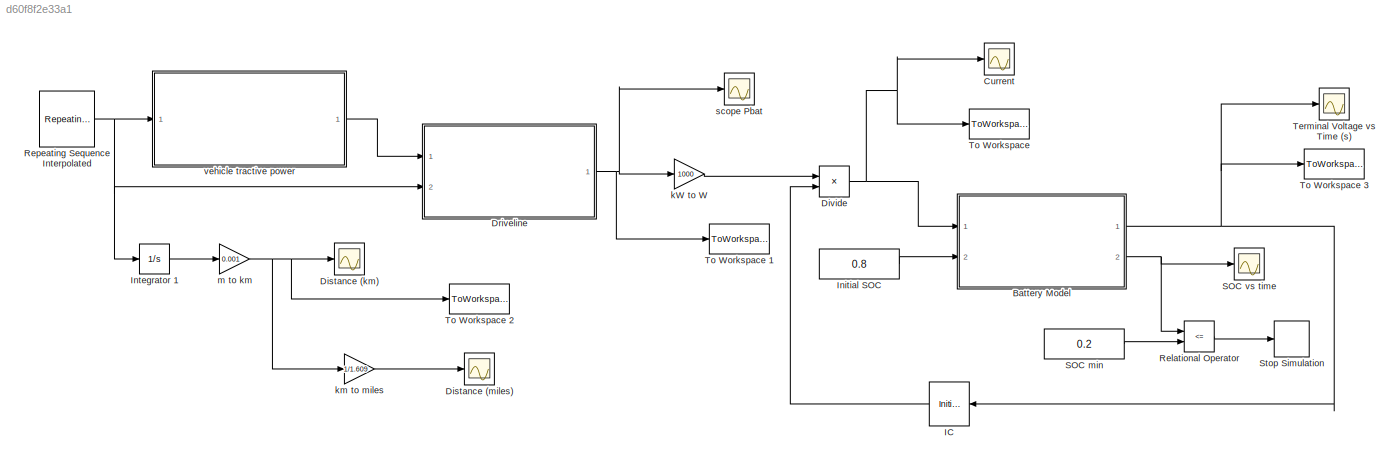
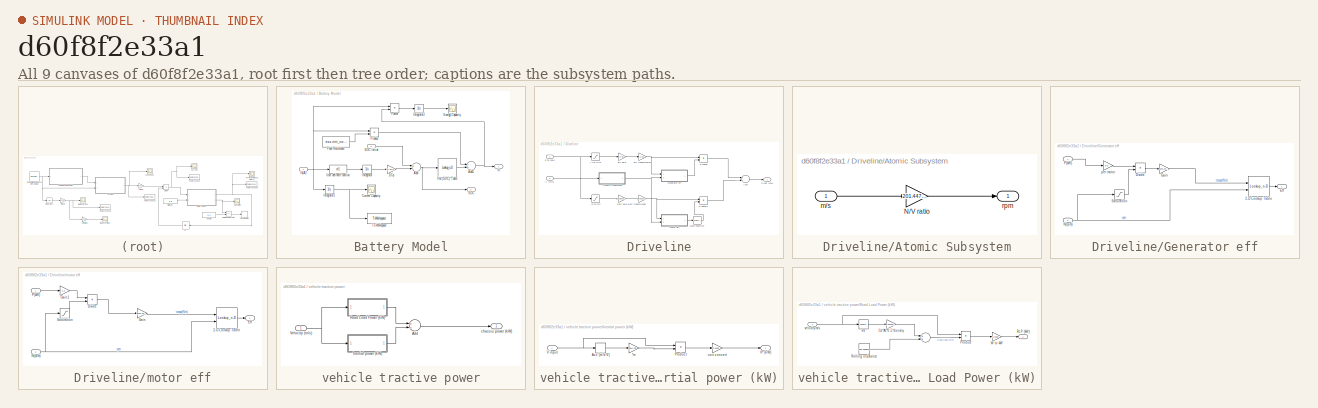
[diagram: thumbnail index - all 9 canvases of the model, root first then tree order]
MODEL slx_d60f8f2e33a1
KIND model
CONFIG AbsTol = auto
CONFIG EnableMultiTasking = on
CONFIG FixedStep = 1
CONFIG MaxStep = auto
CONFIG MinStep = auto
CONFIG RelTol = 1e-3
CONFIG SampleTimeConstraint = Unconstrained
CONFIG Solver = ode4
CONFIG SolverName = ode4
CONFIG StartTime = 0.0
CONFIG StopTime = 1000
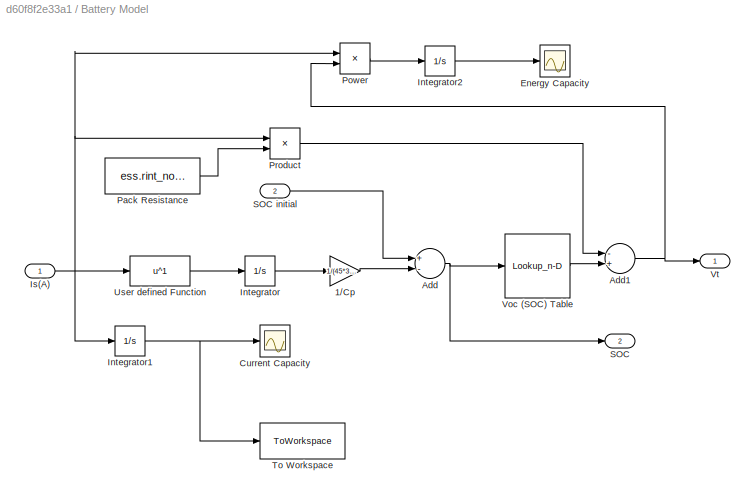
BLOCK [SubSystem] Battery Model
  Ports = [2, 2]
  RequestExecContextInheritance = off
  Variant = off
BLOCK [Gain] Battery Model/1//Cp
  Gain = 1/(45*3600)
  OutDataTypeStr = Inherit: Inherit via internal rule
  ParamDataTypeStr = Inherit: Inherit via internal rule
  SaturateOnIntegerOverflow = off
BLOCK [Sum] Battery Model/Add
  InputSameDT = off
  Inputs = +-
  OutDataTypeStr = Inherit: Inherit via internal rule
  Ports = [2, 1]
  SaturateOnIntegerOverflow = off
BLOCK [Sum] Battery Model/Add1
  InputSameDT = off
  Inputs = -+
  OutDataTypeStr = Inherit: Inherit via internal rule
  Ports = [2, 1]
  SaturateOnIntegerOverflow = off
BLOCK [Scope] Battery Model/Current Capacity
  NumInputPorts = 1
  Ports = [1]
  ScopeSpecificationString = Simulink.scopes.TimeScopeBlockCfg('CurrentConfiguration', extmgr.ConfigurationSet(extmgr.Configuration('Core','General UI',true),extmgr.Configuration('Core','Source UI',true),extmgr.Configuration('Sources','WiredSimulink',true,'DataLoggingVariableName','ScopeData2'),extmgr.Configuration('Visuals','Time Domain',true,'SerializedDisplays',{struct('MinYLimReal','-5.2425','MaxYLimReal','47.1825','YLabe...<+1368ch>
BLOCK [Scope] Battery Model/Energy Capacity
  NumInputPorts = 1
  Ports = [1]
  ScopeSpecificationString = Simulink.scopes.TimeScopeBlockCfg('CurrentConfiguration', extmgr.ConfigurationSet(extmgr.Configuration('Core','General UI',true),extmgr.Configuration('Core','Source UI',true),extmgr.Configuration('Sources','WiredSimulink',true,'DataLoggingVariableName','ScopeData3'),extmgr.Configuration('Visuals','Time Domain',true,'SerializedDisplays',{struct('MinYLimReal','-1867.01406','MaxYLimReal','16803.12651...<+1396ch>
BLOCK [Integrator] Battery Model/Integrator
  Ports = [1, 1]
BLOCK [Integrator] Battery Model/Integrator1
  Ports = [1, 1]
BLOCK [Integrator] Battery Model/Integrator2
  Ports = [1, 1]
BLOCK [Inport] Battery Model/Is(A)
  IconDisplay = Port number
BLOCK [Constant] Battery Model/Pack Resistance
  Value = ess.rint_nom_pack
BLOCK [Product] Battery Model/Power
  InputSameDT = off
  OutDataTypeStr = Inherit: Inherit via internal rule
  Ports = [2, 1]
  RndMeth = Floor
  SaturateOnIntegerOverflow = off
BLOCK [Product] Battery Model/Product
  InputSameDT = off
  OutDataTypeStr = Inherit: Inherit via internal rule
  Ports = [2, 1]
  RndMeth = Floor
  SaturateOnIntegerOverflow = off
BLOCK [Outport] Battery Model/SOC
  IconDisplay = Port number
  Port = 2
BLOCK [Inport] Battery Model/SOC initial
  IconDisplay = Port number
  Port = 2
BLOCK [ToWorkspace] Battery Model/To Workspace
  FixptAsFi = on
  MaxDataPoints = inf
  Ports = [1]
  SampleTime = -1
  Save2DSignal = 3-D array (concatenate along third dimension)
  SaveFormat = Timeseries
  VariableName = Charge_Capacity
BLOCK [Fcn] Battery Model/User defined Function
  Expr = u^1
BLOCK [Lookup_n-D] Battery Model/Voc (SOC) Table
  BreakpointsForDimension1 = ess.soc_index
  InternalRulePriority = Speed
  NumberOfTableDimensions = 1
  Ports = [1, 1]
  RndMeth = Simplest
  Table = ess.voc_map_pack
BLOCK [Outport] Battery Model/Vt
  IconDisplay = Port number
BLOCK [Scope] Current
  NumInputPorts = 1
  Ports = [1]
  ScopeSpecificationString = Simulink.scopes.TimeScopeBlockCfg('CurrentConfiguration', extmgr.ConfigurationSet(extmgr.Configuration('Core','General UI',true),extmgr.Configuration('Core','Source UI',true),extmgr.Configuration('Sources','WiredSimulink',true,'DataLoggingVariableName','ScopeData1'),extmgr.Configuration('Visuals','Time Domain',true,'SerializedDisplays',{struct('MinYLimReal','-337.6155','MaxYLimReal','856.55218','Y...<+1404ch>
BLOCK [Scope] Distance (km)
  NumInputPorts = 1
  Ports = [1]
  ScopeSpecificationString = Simulink.scopes.TimeScopeBlockCfg('CurrentConfiguration', extmgr.ConfigurationSet(extmgr.Configuration('Core','General UI',true),extmgr.Configuration('Core','Source UI',true),extmgr.Configuration('Sources','WiredSimulink',true,'DataLoggingVariableName','ScopeData2'),extmgr.Configuration('Visuals','Time Domain',true,'SerializedDisplays',{struct('MinYLimReal','-2.78105','MaxYLimReal','25.02945','YLa...<+1666ch>
BLOCK [Scope] Distance (miles)
  NumInputPorts = 1
  Ports = [1]
  ScopeSpecificationString = Simulink.scopes.TimeScopeBlockCfg('CurrentConfiguration', extmgr.ConfigurationSet(extmgr.Configuration('Core','General UI',true),extmgr.Configuration('Core','Source UI',true),extmgr.Configuration('Sources','WiredSimulink',true,'DataLoggingVariableName','ScopeData3'),extmgr.Configuration('Visuals','Time Domain',true,'SerializedDisplays',{struct('MinYLimReal','-1.72843','MaxYLimReal','15.5559','YLab...<+1370ch>
BLOCK [Product] Divide
  InputSameDT = off
  Inputs = */
  OutDataTypeStr = Inherit: Inherit via internal rule
  Ports = [2, 1]
  RndMeth = Floor
  SaturateOnIntegerOverflow = off
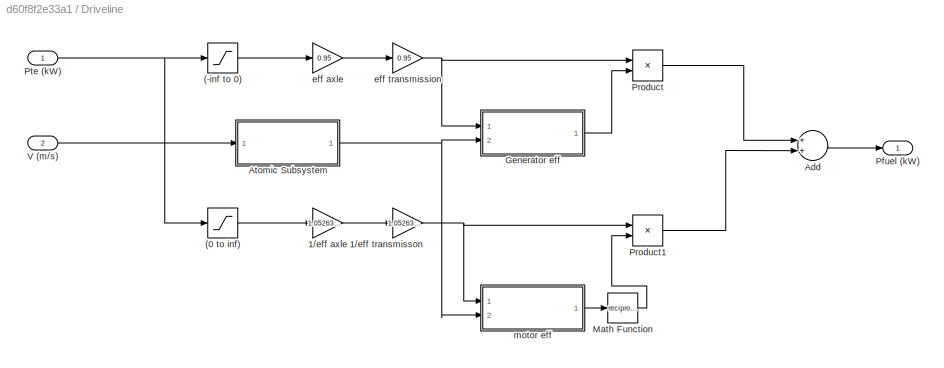
BLOCK [SubSystem] Driveline
  Ports = [2, 1]
  RequestExecContextInheritance = off
  Variant = off
BLOCK [Saturate] Driveline/(-inf to 0)
  InputPortMap = u0
  LowerLimit = -inf
  Ports = [1, 1]
  UpperLimit = 0
BLOCK [Saturate] Driveline/(0 to inf)
  InputPortMap = u0
  LowerLimit = 0
  Ports = [1, 1]
  UpperLimit = inf
BLOCK [Gain] Driveline/1//eff axle 
  Gain = 1.052631579
  OutDataTypeStr = Inherit: Inherit via internal rule
  ParamDataTypeStr = Inherit: Inherit via internal rule
  SaturateOnIntegerOverflow = off
BLOCK [Gain] Driveline/1//eff transmisson
  Gain = 1.052631579
  OutDataTypeStr = Inherit: Inherit via internal rule
  ParamDataTypeStr = Inherit: Inherit via internal rule
  SaturateOnIntegerOverflow = off
BLOCK [Sum] Driveline/Add
  InputSameDT = off
  OutDataTypeStr = Inherit: Inherit via internal rule
  Ports = [2, 1]
  SaturateOnIntegerOverflow = off
BLOCK [SubSystem] Driveline/Atomic Subsystem
  Ports = [1, 1]
  RequestExecContextInheritance = off
  TreatAsAtomicUnit = on
  Variant = off
BLOCK [Gain] Driveline/Atomic Subsystem/N//V ratio
  Gain = 201.447874
  OutDataTypeStr = Inherit: Inherit via internal rule
  ParamDataTypeStr = Inherit: Inherit via internal rule
  SaturateOnIntegerOverflow = off
BLOCK [Inport] Driveline/Atomic Subsystem/m//s
  IconDisplay = Port number
BLOCK [Outport] Driveline/Atomic Subsystem/rpm
  IconDisplay = Port number
BLOCK [SubSystem] Driveline/Generator eff
  Ports = [2, 1]
  RequestExecContextInheritance = off
  TreatAsAtomicUnit = on
  Variant = off
BLOCK [Lookup_n-D] Driveline/Generator eff/2-D Lookup Table
  BreakpointsForDimension1 = mc.trq_eff_index_gen
  BreakpointsForDimension2 = mc.rpm_eff_index_gen
  InternalRulePriority = Speed
  Ports = [2, 1]
  RndMeth = Simplest
  Table = mc.eff_trq_map_gen'
BLOCK [Product] Driveline/Generator eff/Divide
  InputSameDT = off
  Inputs = */
  OutDataTypeStr = Inherit: Inherit via internal rule
  Ports = [2, 1]
  RndMeth = Floor
  SaturateOnIntegerOverflow = off
BLOCK [Outport] Driveline/Generator eff/Eff 
  IconDisplay = Port number
BLOCK [Gain] Driveline/Generator eff/Gain
  Gain = 9549.29658551372
  OutDataTypeStr = Inherit: Inherit via internal rule
  ParamDataTypeStr = Inherit: Inherit via internal rule
  SaturateOnIntegerOverflow = off
BLOCK [Inport] Driveline/Generator eff/N(rpm)
  IconDisplay = Port number
  Port = 2
BLOCK [Inport] Driveline/Generator eff/P(kW)
  IconDisplay = Port number
BLOCK [Saturate] Driveline/Generator eff/Saturation
  InputPortMap = u0
  LowerLimit = 0.1
  Ports = [1, 1]
  UpperLimit = 8000
BLOCK [Gain] Driveline/Generator eff/per  motor
  Gain = 0.5
  OutDataTypeStr = Inherit: Inherit via internal rule
  ParamDataTypeStr = Inherit: Inherit via internal rule
  SaturateOnIntegerOverflow = off
BLOCK [Math] Driveline/Math Function
  Operator = reciprocal
  Ports = [1, 1]
BLOCK [Outport] Driveline/Pfuel (kW)
  IconDisplay = Port number
BLOCK [Product] Driveline/Product
  InputSameDT = off
  OutDataTypeStr = Inherit: Inherit via internal rule
  Ports = [2, 1]
  RndMeth = Floor
  SaturateOnIntegerOverflow = off
BLOCK [Product] Driveline/Product1
  InputSameDT = off
  OutDataTypeStr = Inherit: Inherit via internal rule
  Ports = [2, 1]
  RndMeth = Floor
  SaturateOnIntegerOverflow = off
BLOCK [Inport] Driveline/Pte (kW)
  IconDisplay = Port number
BLOCK [Inport] Driveline/V (m//s)
  IconDisplay = Port number
  Port = 2
BLOCK [Gain] Driveline/eff axle
  Gain = 0.95
  OutDataTypeStr = Inherit: Inherit via internal rule
  ParamDataTypeStr = Inherit: Inherit via internal rule
  SaturateOnIntegerOverflow = off
BLOCK [Gain] Driveline/eff transmission
  Gain = 0.95
  OutDataTypeStr = Inherit: Inherit via internal rule
  ParamDataTypeStr = Inherit: Inherit via internal rule
  SaturateOnIntegerOverflow = off
BLOCK [SubSystem] Driveline/motor eff
  Ports = [2, 1]
  RequestExecContextInheritance = off
  TreatAsAtomicUnit = on
  Variant = off
BLOCK [Lookup_n-D] Driveline/motor eff/2-D Lookup Table
  BreakpointsForDimension1 = mc.trq_eff_index
  BreakpointsForDimension2 = mc.rpm_eff_index
  InternalRulePriority = Speed
  Ports = [2, 1]
  RndMeth = Simplest
  Table = mc.eff_trq_map'
BLOCK [Product] Driveline/motor eff/Divide
  InputSameDT = off
  Inputs = */
  OutDataTypeStr = Inherit: Inherit via internal rule
  Ports = [2, 1]
  RndMeth = Floor
  SaturateOnIntegerOverflow = off
BLOCK [Outport] Driveline/motor eff/Eff 
  IconDisplay = Port number
BLOCK [Gain] Driveline/motor eff/Gain
  Gain = 9549.29658551372
  OutDataTypeStr = Inherit: Inherit via internal rule
  ParamDataTypeStr = Inherit: Inherit via internal rule
  SaturateOnIntegerOverflow = off
BLOCK [Gain] Driveline/motor eff/Gain1
  Gain = 0.5
  OutDataTypeStr = Inherit: Inherit via internal rule
  ParamDataTypeStr = Inherit: Inherit via internal rule
  SaturateOnIntegerOverflow = off
BLOCK [Inport] Driveline/motor eff/N(rpm)
  IconDisplay = Port number
  Port = 2
BLOCK [Inport] Driveline/motor eff/P(kW)
  IconDisplay = Port number
BLOCK [Saturate] Driveline/motor eff/Saturation
  InputPortMap = u0
  LowerLimit = 0.1
  Ports = [1, 1]
  UpperLimit = 8000
BLOCK [InitialCondition] IC
  Value = 345
BLOCK [Constant] Initial SOC
  Value = 0.8
BLOCK [Integrator] Integrator 1
  Ports = [1, 1]
BLOCK [RelationalOperator] Relational Operator
  InputSameDT = off
  Operator = <=
  OutDataTypeStr = boolean
  Ports = [2, 1]
BLOCK [Reference] Repeating Sequence Interpolated  REF=simulink/Sources/Repeating
Sequence
Interpolated
  Ports = [0, 1]
  SourceBlock = simulink/Sources/Repeating\nSequence\nInterpolated
  SourceProductBaseCode = SL
  SourceProductName = Simulink
  SourceType = Repeating Sequence Interpolated
BLOCK [Constant] SOC min
  Value = 0.2
BLOCK [Scope] SOC vs time
  NumInputPorts = 1
  Ports = [1]
  ScopeSpecificationString = Simulink.scopes.TimeScopeBlockCfg('CurrentConfiguration', extmgr.ConfigurationSet(extmgr.Configuration('Core','General UI',true),extmgr.Configuration('Core','Source UI',true),extmgr.Configuration('Sources','WiredSimulink',true,'DataLoggingVariableName','ScopeData1'),extmgr.Configuration('Visuals','Time Domain',true,'SerializedDisplays',{struct('MinYLimReal','-1.00000','MaxYLimReal','1.00000','YLab...<+1471ch>
BLOCK [Stop] Stop Simulation
BLOCK [Scope] Terminal Voltage vs Time (s)
  NumInputPorts = 1
  Ports = [1]
  ScopeSpecificationString = Simulink.scopes.TimeScopeBlockCfg('CurrentConfiguration', extmgr.ConfigurationSet(extmgr.Configuration('Core','General UI',true),extmgr.Configuration('Core','Source UI',true),extmgr.Configuration('Sources','WiredSimulink',true),extmgr.Configuration('Visuals','Time Domain',true,'SerializedDisplays',{struct('MinYLimReal','265.41162','MaxYLimReal','416.06891','YLabelReal','','MinYLimMag','265.41162',...<+1663ch>
BLOCK [ToWorkspace] To Workspace
  FixptAsFi = on
  MaxDataPoints = inf
  Ports = [1]
  SampleTime = -1
  Save2DSignal = 3-D array (concatenate along third dimension)
  SaveFormat = Timeseries
  VariableName = Ibat
BLOCK [ToWorkspace] To Workspace 1
  FixptAsFi = on
  MaxDataPoints = inf
  Ports = [1]
  SampleTime = -1
  Save2DSignal = 3-D array (concatenate along third dimension)
  SaveFormat = Timeseries
  VariableName = Pbat
BLOCK [ToWorkspace] To Workspace 2
  FixptAsFi = on
  MaxDataPoints = inf
  Ports = [1]
  SampleTime = -1
  Save2DSignal = 3-D array (concatenate along third dimension)
  SaveFormat = Timeseries
  VariableName = Distance
BLOCK [ToWorkspace] To Workspace 3
  FixptAsFi = on
  MaxDataPoints = inf
  Ports = [1]
  SampleTime = -1
  Save2DSignal = 3-D array (concatenate along third dimension)
  SaveFormat = Timeseries
  VariableName = Voltage
BLOCK [Gain] kW to W
  Gain = 1000
  OutDataTypeStr = Inherit: Inherit via internal rule
  ParamDataTypeStr = Inherit: Inherit via internal rule
  SaturateOnIntegerOverflow = off
BLOCK [Gain] km to miles
  Gain = 1/1.609
  OutDataTypeStr = Inherit: Inherit via internal rule
  ParamDataTypeStr = Inherit: Inherit via internal rule
  SaturateOnIntegerOverflow = off
BLOCK [Gain] m to km
  Gain = 0.001
  OutDataTypeStr = Inherit: Inherit via internal rule
  ParamDataTypeStr = Inherit: Inherit via internal rule
  SaturateOnIntegerOverflow = off
BLOCK [Scope] scope Pbat
  NumInputPorts = 1
  Ports = [1]
  ScopeSpecificationString = Simulink.scopes.TimeScopeBlockCfg('CurrentConfiguration', extmgr.ConfigurationSet(extmgr.Configuration('Core','General UI',true),extmgr.Configuration('Core','Source UI',true),extmgr.Configuration('Sources','WiredSimulink',true,'DataLoggingVariableName','ScopeData4'),extmgr.Configuration('Visuals','Time Domain',true,'SerializedDisplays',{struct('MinYLimReal','-116.32857','MaxYLimReal','242.64738','...<+1409ch>
BLOCK [SubSystem] vehicle tractive power
  Ports = [1, 1]
  RequestExecContextInheritance = off
  Variant = off
BLOCK [Sum] vehicle tractive power/Add
  InputSameDT = off
  OutDataTypeStr = Inherit: Inherit via internal rule
  Ports = [2, 1]
  SaturateOnIntegerOverflow = off
BLOCK [SubSystem] vehicle tractive power/Inertial power (kW)
  Ports = [1, 1]
  RequestExecContextInheritance = off
  TreatAsAtomicUnit = on
  Variant = off
BLOCK [Gain] vehicle tractive power/Inertial power (kW)/*m
  Gain = 3094.765
  OutDataTypeStr = Inherit: Inherit via internal rule
  ParamDataTypeStr = Inherit: Inherit via internal rule
  SaturateOnIntegerOverflow = off
BLOCK [Derivative] vehicle tractive power/Inertial power (kW)/Acc (m//s^2)
BLOCK [Outport] vehicle tractive power/Inertial power (kW)/IP (kW)
  IconDisplay = Port number
BLOCK [Product] vehicle tractive power/Inertial power (kW)/Product
  InputSameDT = off
  OutDataTypeStr = Inherit: Inherit via internal rule
  Ports = [2, 1]
  RndMeth = Floor
  SaturateOnIntegerOverflow = off
BLOCK [Inport] vehicle tractive power/Inertial power (kW)/V input
  IconDisplay = Port number
BLOCK [Gain] vehicle tractive power/Inertial power (kW)/unit convert
  Gain = 1/1000
  OutDataTypeStr = Inherit: Inherit via internal rule
  ParamDataTypeStr = Inherit: Inherit via internal rule
  SaturateOnIntegerOverflow = off
BLOCK [SubSystem] vehicle tractive power/Road Load Power (kW)
  Ports = [1, 1]
  RequestExecContextInheritance = off
  TreatAsAtomicUnit = on
  Variant = off
BLOCK [Sum] vehicle tractive power/Road Load Power (kW)/ 
  InputSameDT = off
  OutDataTypeStr = Inherit: Inherit via internal rule
  Ports = [2, 1]
  SaturateOnIntegerOverflow = off
BLOCK [Gain] vehicle tractive power/Road Load Power (kW)/Cd*Af*0.5*density 
  Gain = 0.55539046
  OutDataTypeStr = Inherit: Inherit via internal rule
  ParamDataTypeStr = Inherit: Inherit via internal rule
  SaturateOnIntegerOverflow = off
BLOCK [Product] vehicle tractive power/Road Load Power (kW)/Product
  InputSameDT = off
  OutDataTypeStr = Inherit: Inherit via internal rule
  Ports = [2, 1]
  RndMeth = Floor
  SaturateOnIntegerOverflow = off
BLOCK [Outport] vehicle tractive power/Road Load Power (kW)/RLP (kW)
  IconDisplay = Port number
BLOCK [Constant] vehicle tractive power/Road Load Power (kW)/Rolling resistance 
  Value = 290.396601
BLOCK [Gain] vehicle tractive power/Road Load Power (kW)/W to kW
  Gain = 1/1000
  OutDataTypeStr = Inherit: Inherit via internal rule
  ParamDataTypeStr = Inherit: Inherit via internal rule
  SaturateOnIntegerOverflow = off
BLOCK [Math] vehicle tractive power/Road Load Power (kW)/v^2
  Operator = square
  Ports = [1, 1]
BLOCK [Inport] vehicle tractive power/Road Load Power (kW)/velocity m//s 
  IconDisplay = Port number
BLOCK [Inport] vehicle tractive power/Velocity (m//s)
  IconDisplay = Port number
BLOCK [Outport] vehicle tractive power/chassis power (kW)
  IconDisplay = Port number
LINE Battery Model/1//Cp:1 -> Battery Model/Add:2
NET Battery Model/Add1:1 -> Battery Model/Power:2, Battery Model/Vt:1
NET Battery Model/Add:1 -> Battery Model/SOC:1, Battery Model/Voc (SOC) Table:1
NET Battery Model/Integrator1:1 -> Battery Model/Current Capacity:1, Battery Model/To Workspace:1
LINE Battery Model/Integrator2:1 -> Battery Model/Energy Capacity:1
LINE Battery Model/Integrator:1 -> Battery Model/1//Cp:1
NET Battery Model/Is(A):1 -> Battery Model/Integrator1:1, Battery Model/Power:1, Battery Model/Product:1, Battery Model/User defined Function:1
LINE Battery Model/Pack Resistance:1 -> Battery Model/Product:2
LINE Battery Model/Power:1 -> Battery Model/Integrator2:1
LINE Battery Model/Product:1 -> Battery Model/Add1:1
LINE Battery Model/SOC initial:1 -> Battery Model/Add:1
LINE Battery Model/User defined Function:1 -> Battery Model/Integrator:1
LINE Battery Model/Voc (SOC) Table:1 -> Battery Model/Add1:2
NET Battery Model:1 -> IC:1, Terminal Voltage vs Time (s):1, To Workspace 3:1
NET Battery Model:2 -> Relational Operator:1, SOC vs time:1
NET Divide:1 -> Battery Model:1, Current:1, To Workspace:1
LINE Driveline/(-inf to 0):1 -> Driveline/eff axle:1
LINE Driveline/(0 to inf):1 -> Driveline/1//eff axle :1
LINE Driveline/1//eff axle :1 -> Driveline/1//eff transmisson:1
NET Driveline/1//eff transmisson:1 -> Driveline/Product1:1, Driveline/motor eff:1
LINE Driveline/Add:1 -> Driveline/Pfuel (kW):1
LINE Driveline/Atomic Subsystem/N//V ratio:1 -> Driveline/Atomic Subsystem/rpm:1
LINE Driveline/Atomic Subsystem/m//s:1 -> Driveline/Atomic Subsystem/N//V ratio:1
NET Driveline/Atomic Subsystem:1 -> Driveline/Generator eff:2, Driveline/motor eff:2
LINE Driveline/Generator eff/2-D Lookup Table:1 -> Driveline/Generator eff/Eff :1
LINE Driveline/Generator eff/Divide:1 -> Driveline/Generator eff/Gain:1
LINE Driveline/Generator eff/Gain:1 -> Driveline/Generator eff/2-D Lookup Table:1
NET Driveline/Generator eff/N(rpm):1 -> Driveline/Generator eff/2-D Lookup Table:2, Driveline/Generator eff/Saturation:1
LINE Driveline/Generator eff/P(kW):1 -> Driveline/Generator eff/per  motor:1
LINE Driveline/Generator eff/Saturation:1 -> Driveline/Generator eff/Divide:2
LINE Driveline/Generator eff/per  motor:1 -> Driveline/Generator eff/Divide:1
LINE Driveline/Generator eff:1 -> Driveline/Product:2
LINE Driveline/Math Function:1 -> Driveline/Product1:2
LINE Driveline/Product1:1 -> Driveline/Add:2
LINE Driveline/Product:1 -> Driveline/Add:1
NET Driveline/Pte (kW):1 -> Driveline/(-inf to 0):1, Driveline/(0 to inf):1
LINE Driveline/V (m//s):1 -> Driveline/Atomic Subsystem:1
LINE Driveline/eff axle:1 -> Driveline/eff transmission:1
NET Driveline/eff transmission:1 -> Driveline/Generator eff:1, Driveline/Product:1
LINE Driveline/motor eff/2-D Lookup Table:1 -> Driveline/motor eff/Eff :1
LINE Driveline/motor eff/Divide:1 -> Driveline/motor eff/Gain:1
LINE Driveline/motor eff/Gain1:1 -> Driveline/motor eff/Divide:1
LINE Driveline/motor eff/Gain:1 -> Driveline/motor eff/2-D Lookup Table:1
NET Driveline/motor eff/N(rpm):1 -> Driveline/motor eff/2-D Lookup Table:2, Driveline/motor eff/Saturation:1
LINE Driveline/motor eff/P(kW):1 -> Driveline/motor eff/Gain1:1
LINE Driveline/motor eff/Saturation:1 -> Driveline/motor eff/Divide:2
LINE Driveline/motor eff:1 -> Driveline/Math Function:1
NET Driveline:1 -> To Workspace 1:1, kW to W:1, scope Pbat:1
LINE IC:1 -> Divide:2
LINE Initial SOC:1 -> Battery Model:2
LINE Integrator 1:1 -> m to km:1
LINE Relational Operator:1 -> Stop Simulation:1
NET Repeating Sequence Interpolated:1 -> Driveline:2, Integrator 1:1, vehicle tractive power:1
LINE SOC min:1 -> Relational Operator:2
LINE kW to W:1 -> Divide:1
LINE km to miles:1 -> Distance (miles):1
NET m to km:1 -> Distance (km):1, To Workspace 2:1, km to miles:1
LINE vehicle tractive power/Add:1 -> vehicle tractive power/chassis power (kW):1
LINE vehicle tractive power/Inertial power (kW)/*m:1 -> vehicle tractive power/Inertial power (kW)/Product:2
LINE vehicle tractive power/Inertial power (kW)/Acc (m//s^2):1 -> vehicle tractive power/Inertial power (kW)/*m:1
LINE vehicle tractive power/Inertial power (kW)/Product:1 -> vehicle tractive power/Inertial power (kW)/unit convert:1
NET vehicle tractive power/Inertial power (kW)/V input:1 -> vehicle tractive power/Inertial power (kW)/Acc (m//s^2):1, vehicle tractive power/Inertial power (kW)/Product:1
LINE vehicle tractive power/Inertial power (kW)/unit convert:1 -> vehicle tractive power/Inertial power (kW)/IP (kW):1
LINE vehicle tractive power/Inertial power (kW):1 -> vehicle tractive power/Add:2
LINE vehicle tractive power/Road Load Power (kW)/ :1 -> vehicle tractive power/Road Load Power (kW)/Product:2
LINE vehicle tractive power/Road Load Power (kW)/Cd*Af*0.5*density :1 -> vehicle tractive power/Road Load Power (kW)/ :1
LINE vehicle tractive power/Road Load Power (kW)/Product:1 -> vehicle tractive power/Road Load Power (kW)/W to kW:1
LINE vehicle tractive power/Road Load Power (kW)/Rolling resistance :1 -> vehicle tractive power/Road Load Power (kW)/ :2
LINE vehicle tractive power/Road Load Power (kW)/W to kW:1 -> vehicle tractive power/Road Load Power (kW)/RLP (kW):1
LINE vehicle tractive power/Road Load Power (kW)/v^2:1 -> vehicle tractive power/Road Load Power (kW)/Cd*Af*0.5*density :1
NET vehicle tractive power/Road Load Power (kW)/velocity m//s :1 -> vehicle tractive power/Road Load Power (kW)/Product:1, vehicle tractive power/Road Load Power (kW)/v^2:1
LINE vehicle tractive power/Road Load Power (kW):1 -> vehicle tractive power/Add:1
NET vehicle tractive power/Velocity (m//s):1 -> vehicle tractive power/Inertial power (kW):1, vehicle tractive power/Road Load Power (kW):1
LINE vehicle tractive power:1 -> Driveline:1
note: NET lines group one-source signal fan-out (src -> all destinations, sorted); 1:1 wires keep LINE
